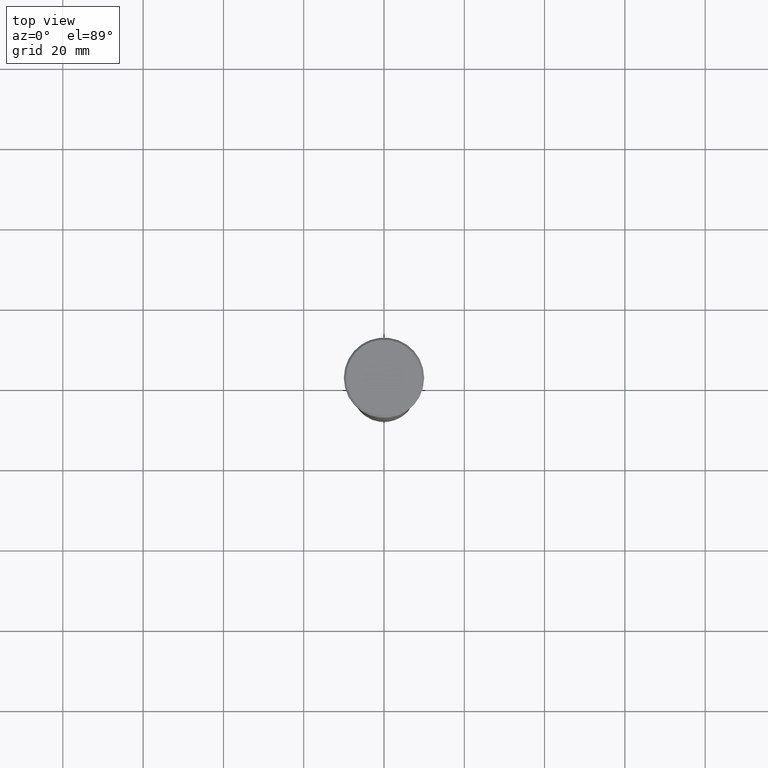
[diagram: clean part render]
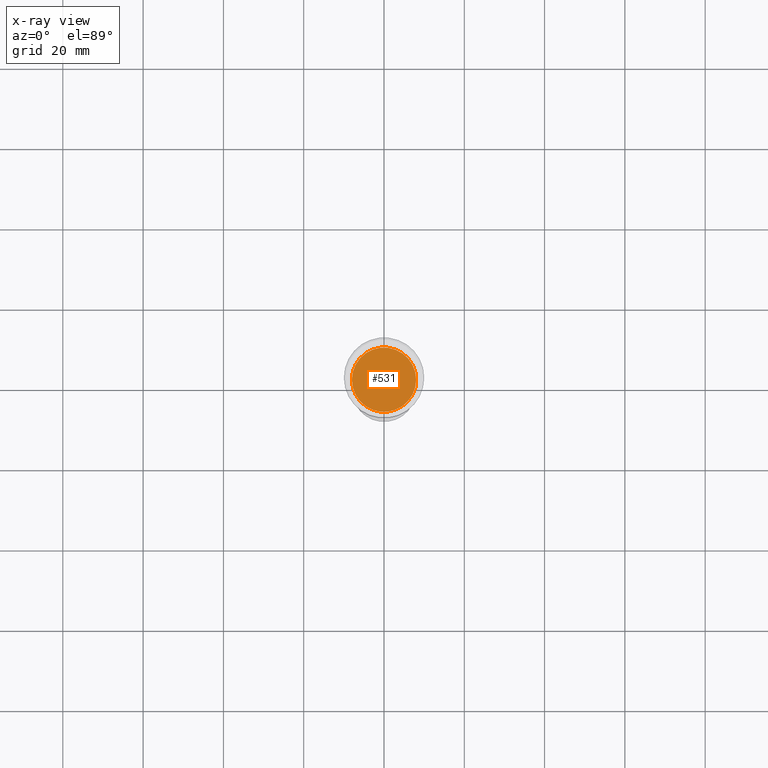
[diagram: x-ray — body ghosted, one internal face saturated and labeled with its STEP entity id]
A machine part, top view, then the same camera in x-ray: the body is ghosted and one INTERNAL B-rep face — a face not visible from any outside direction — is saturated and labeled: STEP entity #531.
In plain terms, the highlighted planar face has unit normal (0, 0, -1).
Its self-contained STEP definition (entity closure, byte-faithful):
#5 = PLANE ( 'NONE',  #608 ) ;
#69 = EDGE_CURVE ( 'NONE', #248, #298, #460, .T. ) ;
#107 = AXIS2_PLACEMENT_3D ( 'NONE', #342, #1007, #666 ) ;
#132 = DIRECTION ( 'NONE',  ( -0.000000000000000000, -0.000000000000000000, 1.000000000000000000 ) ) ;
#186 = CARTESIAN_POINT ( 'NONE',  ( 0.000000000000000000, -1.734723475976807094E-15, -30.00000000000000000 ) ) ;
#195 = CARTESIAN_POINT ( 'NONE',  ( 8.000000000000000000, 0.000000000000000000, -30.00000000000000000 ) ) ;
#223 = CIRCLE ( 'NONE', #107, 8.000000000000000000 ) ;
#224 = EDGE_CURVE ( 'NONE', #298, #248, #223, .T. ) ;
#248 = VERTEX_POINT ( 'NONE', #195 ) ;
#298 = VERTEX_POINT ( 'NONE', #448 ) ;
#311 = ORIENTED_EDGE ( 'NONE', *, *, #224, .T. ) ;
#342 = CARTESIAN_POINT ( 'NONE',  ( 0.000000000000000000, 0.000000000000000000, -30.00000000000000000 ) ) ;
#444 = EDGE_LOOP ( 'NONE', ( #465, #311 ) ) ;
#448 = CARTESIAN_POINT ( 'NONE',  ( -8.000000000000000000, 9.797174393178825657E-16, -30.00000000000000000 ) ) ;
#457 = DIRECTION ( 'NONE',  ( 1.000000000000000000, 0.000000000000000000, 0.000000000000000000 ) ) ;
#460 = CIRCLE ( 'NONE', #994, 8.000000000000000000 ) ;
#465 = ORIENTED_EDGE ( 'NONE', *, *, #69, .T. ) ;
#531 = ADVANCED_FACE ( 'NONE', ( #905 ), #5, .F. ) ;
#608 = AXIS2_PLACEMENT_3D ( 'NONE', #186, #644, #814 ) ;
#644 = DIRECTION ( 'NONE',  ( 0.000000000000000000, 0.000000000000000000, -1.000000000000000000 ) ) ;
#666 = DIRECTION ( 'NONE',  ( 1.000000000000000000, 0.000000000000000000, 0.000000000000000000 ) ) ;
#767 = CARTESIAN_POINT ( 'NONE',  ( 0.000000000000000000, 0.000000000000000000, -30.00000000000000000 ) ) ;
#814 = DIRECTION ( 'NONE',  ( -1.000000000000000000, 0.000000000000000000, -0.000000000000000000 ) ) ;
#905 = FACE_OUTER_BOUND ( 'NONE', #444, .T. ) ;
#994 = AXIS2_PLACEMENT_3D ( 'NONE', #767, #132, #457 ) ;
#1007 = DIRECTION ( 'NONE',  ( -0.000000000000000000, -0.000000000000000000, 1.000000000000000000 ) ) ;